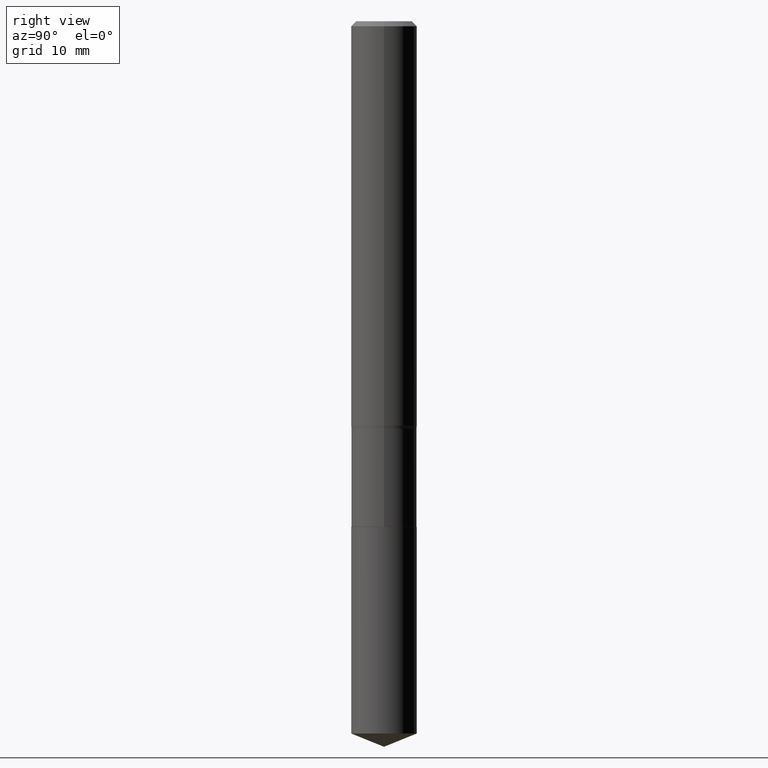
[diagram: clean part render]
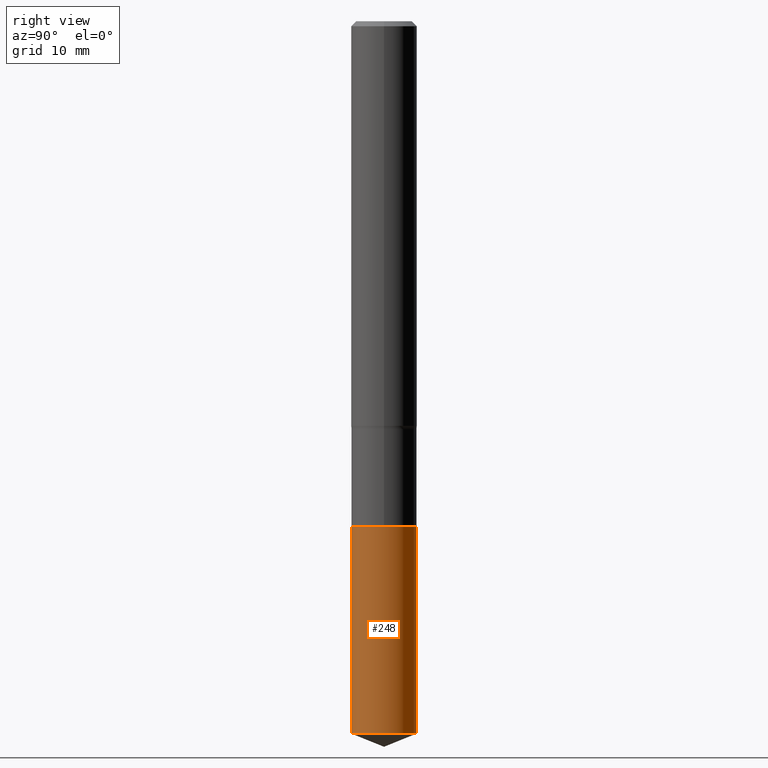
[diagram: same view with one face highlighted and labeled with its STEP entity id]
A machine part, right view. The second image highlights one B-rep face of the part: STEP entity #248.
In plain terms, the highlighted cylindrical surface (edge-blend (fillet) strip) has radius 2.9769 mm, axis along (-0, 0, 1).
Its self-contained STEP definition (entity closure, byte-faithful):
#5 = CARTESIAN_POINT ( 'NONE',  ( 8.327560863108815843E-16, 0.1171999999999936842, -1.811000000000000165 ) ) ;
#6 = DIRECTION ( 'NONE',  ( -6.982962677686265922E-15, -1.000000000000000000, 2.330928322239132474E-15 ) ) ;
#13 = CARTESIAN_POINT ( 'NONE',  ( 4.428744008001282238E-29, -6.323072704644935995E-15, -1.810999999999999943 ) ) ;
#30 = VERTEX_POINT ( 'NONE', #389 ) ;
#43 = CARTESIAN_POINT ( 'NONE',  ( -8.184032258247860819E-16, -0.1172000000000063130, -1.810999999999999721 ) ) ;
#73 = VECTOR ( 'NONE', #157, 39.37007874015748143 ) ;
#74 = ORIENTED_EDGE ( 'NONE', *, *, #313, .F. ) ;
#76 = CARTESIAN_POINT ( 'NONE',  ( -8.184032258247860819E-16, -0.1172000000000063130, -1.810999999999999721 ) ) ;
#82 = CARTESIAN_POINT ( 'NONE',  ( -8.184032258247681353E-16, -0.1172000000000089498, -2.551048126332119192 ) ) ;
#102 = VECTOR ( 'NONE', #386, 39.37007874015748143 ) ;
#109 = VERTEX_POINT ( 'NONE', #76 ) ;
#136 = EDGE_CURVE ( 'NONE', #197, #30, #385, .T. ) ;
#143 = CARTESIAN_POINT ( 'NONE',  ( 8.327560863108999253E-16, 0.1171999999999936842, -1.811000000000000165 ) ) ;
#152 = DIRECTION ( 'NONE',  ( -2.445423962145081395E-29, 3.491545558060868781E-15, 1.000000000000000000 ) ) ;
#157 = DIRECTION ( 'NONE',  ( -2.445423962145081676E-29, 3.491545558060868781E-15, 1.000000000000000000 ) ) ;
#158 = FACE_OUTER_BOUND ( 'NONE', #192, .T. ) ;
#165 = ORIENTED_EDGE ( 'NONE', *, *, #350, .F. ) ;
#177 = AXIS2_PLACEMENT_3D ( 'NONE', #460, #390, #318 ) ;
#192 = EDGE_LOOP ( 'NONE', ( #244, #381, #165, #74 ) ) ;
#197 = VERTEX_POINT ( 'NONE', #82 ) ;
#238 = EDGE_CURVE ( 'NONE', #30, #492, #245, .T. ) ;
#243 = DIRECTION ( 'NONE',  ( -2.445423962145081395E-29, 3.491545558060868781E-15, 1.000000000000000000 ) ) ;
#244 = ORIENTED_EDGE ( 'NONE', *, *, #136, .T. ) ;
#245 = LINE ( 'NONE', #5, #102 ) ;
#248 = ADVANCED_FACE ( 'NONE', ( #158 ), #351, .T. ) ;
#301 = AXIS2_PLACEMENT_3D ( 'NONE', #490, #152, #380 ) ;
#313 = EDGE_CURVE ( 'NONE', #197, #109, #425, .T. ) ;
#318 = DIRECTION ( 'NONE',  ( -6.982962677686265922E-15, -1.000000000000000000, 2.330928322239132474E-15 ) ) ;
#320 = CIRCLE ( 'NONE', #453, 0.1171999999999999986 ) ;
#350 = EDGE_CURVE ( 'NONE', #109, #492, #320, .T. ) ;
#351 = CYLINDRICAL_SURFACE ( 'NONE', #177, 0.1171999999999999986 ) ;
#380 = DIRECTION ( 'NONE',  ( -6.982962677686265922E-15, -1.000000000000000000, 4.661856644478264948E-15 ) ) ;
#381 = ORIENTED_EDGE ( 'NONE', *, *, #238, .T. ) ;
#385 = CIRCLE ( 'NONE', #301, 0.1171999999999999986 ) ;
#386 = DIRECTION ( 'NONE',  ( -2.445423962145081676E-29, 3.491545558060868781E-15, 1.000000000000000000 ) ) ;
#389 = CARTESIAN_POINT ( 'NONE',  ( 8.327560863108999253E-16, 0.1171999999999911030, -2.551048126332120081 ) ) ;
#390 = DIRECTION ( 'NONE',  ( -2.445423962145081395E-29, 3.491545558060868781E-15, 1.000000000000000000 ) ) ;
#425 = LINE ( 'NONE', #43, #73 ) ;
#453 = AXIS2_PLACEMENT_3D ( 'NONE', #13, #243, #6 ) ;
#460 = CARTESIAN_POINT ( 'NONE',  ( 4.428744008001282238E-29, -6.323072704644935995E-15, -1.810999999999999943 ) ) ;
#490 = CARTESIAN_POINT ( 'NONE',  ( 6.238475429274418212E-29, -8.906984452891117055E-15, -2.551048126332119637 ) ) ;
#492 = VERTEX_POINT ( 'NONE', #143 ) ;